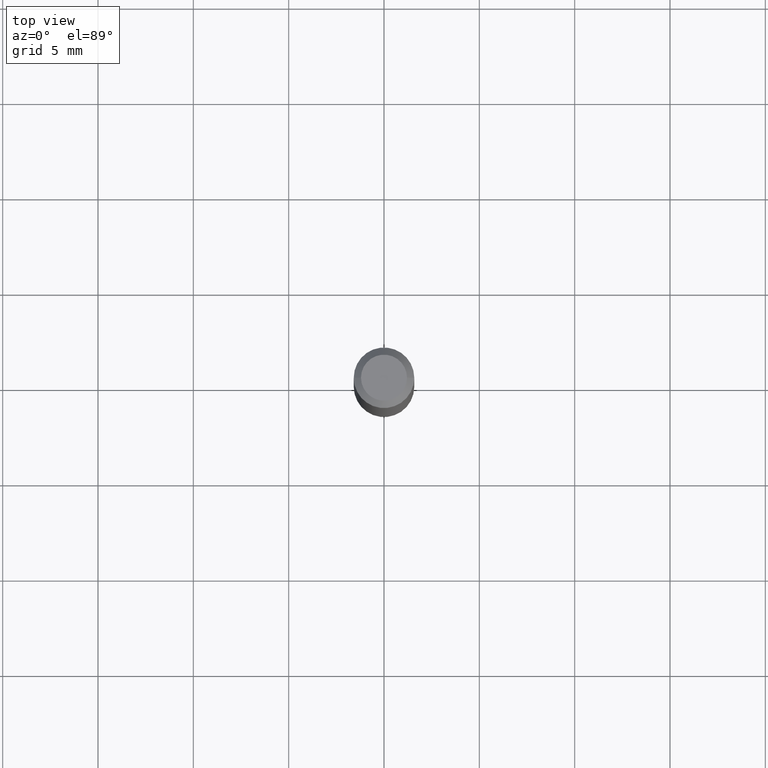
[diagram: clean part render]
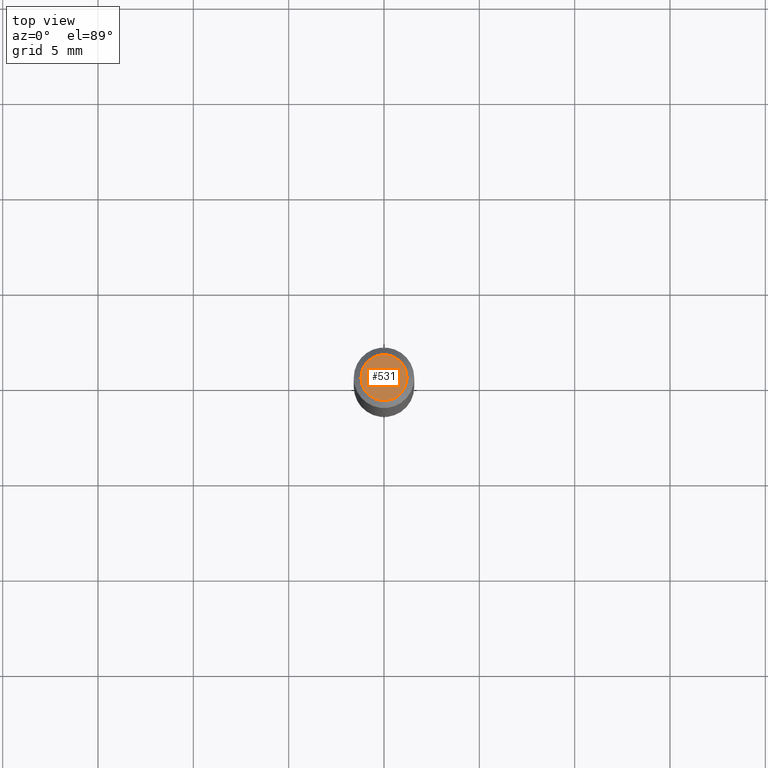
[diagram: same view with one face highlighted and labeled with its STEP entity id]
A machine part, top view. The second image highlights one B-rep face of the part: STEP entity #531.
In plain terms, the highlighted planar face has unit normal (0, -0, -1).
Its self-contained STEP definition (entity closure, byte-faithful):
#94 = CIRCLE ( 'NONE', #253, 0.04749999999999999362 ) ;
#118 = CIRCLE ( 'NONE', #481, 0.04749999999999999362 ) ;
#125 = CARTESIAN_POINT ( 'NONE',  ( 0.04749999999999999362, -4.035134999187581581E-16, -8.274703207154280181E-17 ) ) ;
#138 = EDGE_LOOP ( 'NONE', ( #496, #354 ) ) ;
#157 = DIRECTION ( 'NONE',  ( -2.445468806185136597E-29, 3.491481338843145583E-15, 1.000000000000000000 ) ) ;
#176 = VERTEX_POINT ( 'NONE', #546 ) ;
#209 = VERTEX_POINT ( 'NONE', #125 ) ;
#243 = CARTESIAN_POINT ( 'NONE',  ( 2.023552857353652888E-45, -2.889097183224559242E-31, -8.274703207154537794E-17 ) ) ;
#252 = CARTESIAN_POINT ( 'NONE',  ( 2.023552857353652888E-45, -2.889097183224559242E-31, -8.274703207154537794E-17 ) ) ;
#253 = AXIS2_PLACEMENT_3D ( 'NONE', #243, #532, #536 ) ;
#350 = DIRECTION ( 'NONE',  ( -1.000000000000000000, 6.982962677686265922E-15, -4.876176775795935793E-29 ) ) ;
#354 = ORIENTED_EDGE ( 'NONE', *, *, #466, .T. ) ;
#391 = EDGE_CURVE ( 'NONE', #176, #209, #94, .T. ) ;
#405 = DIRECTION ( 'NONE',  ( 2.438088387897960049E-29, -3.491481338843145188E-15, -1.000000000000000000 ) ) ;
#412 = DIRECTION ( 'NONE',  ( 1.000000000000000000, -6.982962677686267499E-15, 4.884662768193073002E-29 ) ) ;
#435 = AXIS2_PLACEMENT_3D ( 'NONE', #454, #405, #350 ) ;
#454 = CARTESIAN_POINT ( 'NONE',  ( 3.316907271900976096E-16, 0.04749999999999999362, 3.181781981480094004E-17 ) ) ;
#456 = PLANE ( 'NONE',  #435 ) ;
#466 = EDGE_CURVE ( 'NONE', #209, #176, #118, .T. ) ;
#481 = AXIS2_PLACEMENT_3D ( 'NONE', #252, #157, #412 ) ;
#496 = ORIENTED_EDGE ( 'NONE', *, *, #391, .T. ) ;
#531 = ADVANCED_FACE ( 'NONE', ( #563 ), #456, .F. ) ;
#532 = DIRECTION ( 'NONE',  ( -2.445468806185136597E-29, 3.491481338843145583E-15, 1.000000000000000000 ) ) ;
#536 = DIRECTION ( 'NONE',  ( 1.000000000000000000, -6.982962677686267499E-15, 4.884662768193073002E-29 ) ) ;
#546 = CARTESIAN_POINT ( 'NONE',  ( -0.04749999999999999362, 3.578768372314208041E-16, -8.274703207154778150E-17 ) ) ;
#563 = FACE_OUTER_BOUND ( 'NONE', #138, .T. ) ;